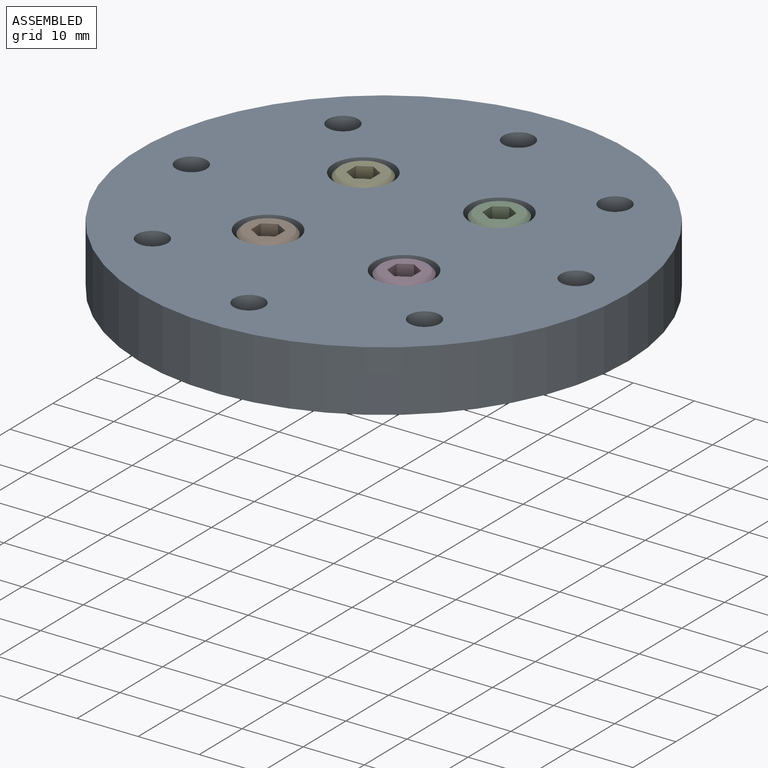
[diagram: assembled view]
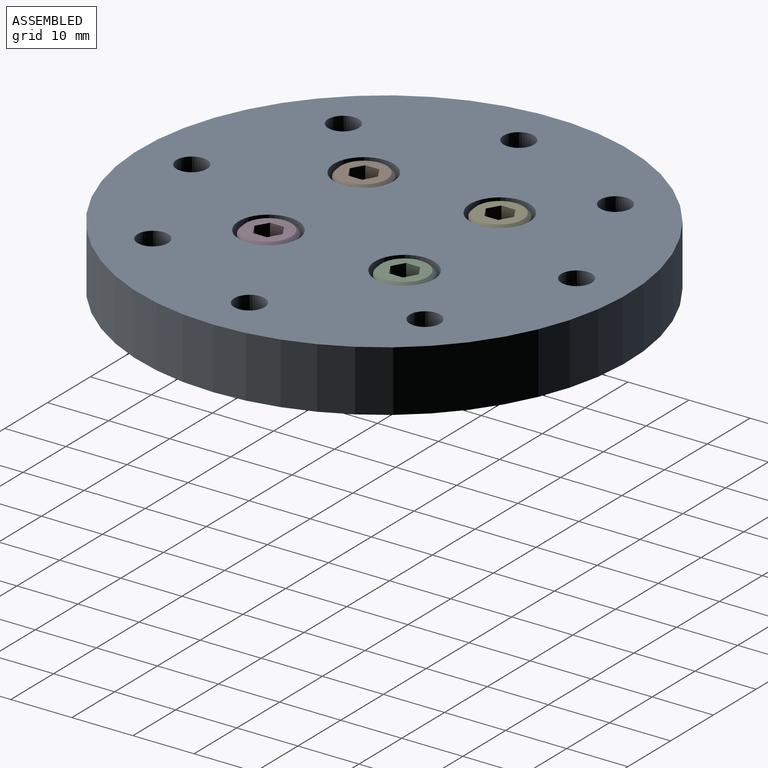
[diagram: assembled view, second angle]
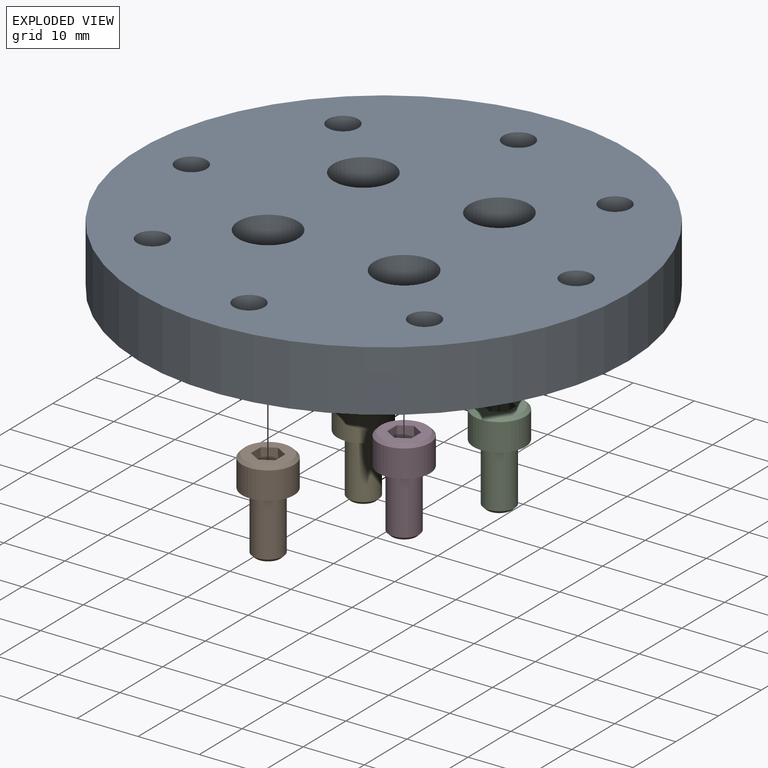
[diagram: exploded view]
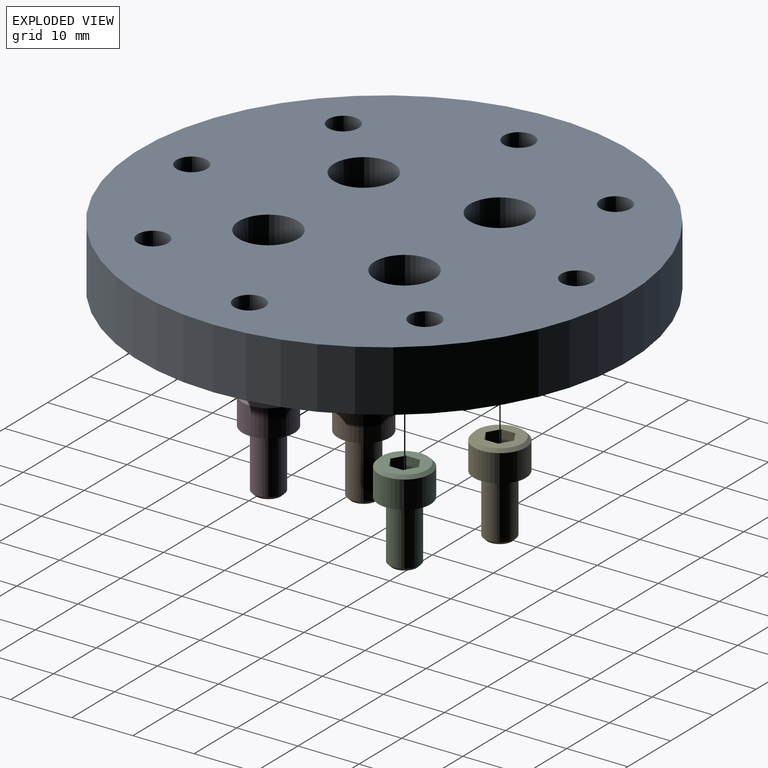
[diagram: exploded view, second angle]
ASSEMBLY  parts=5 mates=4
PART A: 23 faces, bbox 80x80x10 mm
  f0: cylinder r=40mm len=80mm, axis (0,0,-1), area 2513.3mm2, adj f1,f2
  f1: plane 80x80mm, normal (0,0,1), area 4570.8mm2, adj f0,f3,f4,f5,f6,f7,f8,f9
  f2: plane 80x80mm, normal (0,0,-1), area 4774.4mm2, adj f0,f3,f4,f5,f6,f7,f8,f9
  f3: cylinder r=2.5mm len=10mm, axis (0,0,-1), area 157.1mm2, adj f1,f2
  f4: cylinder r=2.5mm len=10mm, axis (0,0,-1), area 157.1mm2, adj f1,f2
  f5: cylinder r=2.5mm len=10mm, axis (0,0,-1), area 157.1mm2, adj f1,f2
  f6: cylinder r=2.5mm len=10mm, axis (0,0,-1), area 157.1mm2, adj f1,f2
  f7: cylinder r=2.5mm len=10mm, axis (0,0,-1), area 157.1mm2, adj f1,f2
  f8: cylinder r=2.5mm len=10mm, axis (0,0,-1), area 157.1mm2, adj f1,f2
  f9: cylinder r=2.5mm len=10mm, axis (0,0,-1), area 157.1mm2, adj f1,f2
  f10: cylinder r=2.5mm len=10mm, axis (0,0,-1), area 157.1mm2, adj f1,f2
  f11: cylinder r=2.75mm len=5.5mm, axis (0,0,1), area 86.4mm2, adj f2,f12
  f12: plane 9.75x9.75mm, normal (0,0,1), area 50.9mm2, adj f11,f13
  f13: cylinder r=4.88mm len=9.75mm, axis (0,0,1), area 153.2mm2, adj f1,f12
  f14: cylinder r=2.75mm len=5.5mm, axis (0,0,1), area 86.4mm2, adj f2,f15
  f15: plane 9.75x9.75mm, normal (0,0,1), area 50.9mm2, adj f14,f16
  f16: cylinder r=4.88mm len=9.75mm, axis (0,0,1), area 153.2mm2, adj f1,f15
  f17: cylinder r=2.75mm len=5.5mm, axis (0,0,1), area 86.4mm2, adj f2,f18
  f18: plane 9.75x9.75mm, normal (0,0,1), area 50.9mm2, adj f17,f19
  f19: cylinder r=4.88mm len=9.75mm, axis (0,0,1), area 153.2mm2, adj f1,f18
  f20: cylinder r=2.75mm len=5.5mm, axis (0,0,1), area 86.4mm2, adj f2,f21
  f21: plane 9.75x9.75mm, normal (0,0,1), area 50.9mm2, adj f20,f22
  f22: cylinder r=4.88mm len=9.75mm, axis (0,0,1), area 153.2mm2, adj f1,f21
PART B: 20 faces, bbox 15x8.5x8.5 mm
  f0: cone r=3.75mm half-angle=45deg, axis (1,0,0), area 17.8mm2, adj f1,f13
  f1: plane 7.5x7.5mm, normal (-1,0,0), area 30.3mm2, adj f0,f2,f3,f4,f5,f6,f7
  f2: plane 2.5x2mm, normal (0,-0.87,0.5), area 5.8mm2, adj f1,f3,f4,f16,f17
  f3: plane 2.5x2mm, normal (0,-0.87,-0.5), area 5.8mm2, adj f1,f2,f7,f17,f18
  f4: plane 2.5x2.31mm, normal (0,0,1), area 5.8mm2, adj f1,f2,f5,f14,f16
  f5: plane 2.5x2mm, normal (0,0.87,0.5), area 5.8mm2, adj f1,f4,f6,f14,f15
  f6: plane 2.5x2mm, normal (0,0.87,-0.5), area 5.8mm2, adj f1,f5,f7,f15,f19
  f7: plane 2.5x2.31mm, normal (0,0,-1), area 5.8mm2, adj f1,f3,f6,f18,f19
  f8: cone r=2mm half-angle=75deg, axis (-1,0,0), area 13mm2, adj f14,f15,f16,f17,f18,f19
  f9: plane 4.02x4.02mm, normal (1,0,0), area 12.7mm2, adj f10
  f10: cone r=2.5mm half-angle=45deg, axis (-1,0,0), area 9.8mm2, adj f9,f11
  f11: cylinder r=2.5mm len=9.51mm, axis (-1,0,0), area 149.4mm2, adj f10,f12
  f12: plane 8.5x8.5mm, normal (1,0,0), area 37.1mm2, adj f11,f13
  f13: cylinder r=4.25mm len=8.5mm, axis (-1,0,0), area 120.2mm2, adj f0,f12
  f14: plane 1.73x1mm, normal (-1,0,0), area 0.2mm2, adj f4,f5,f8
  f15: plane 2x0.58mm, normal (-1,0,0), area 0.2mm2, adj f5,f6,f8
  f16: plane 1.73x1mm, normal (-1,0,0), area 0.2mm2, adj f2,f4,f8
  f17: plane 2x0.58mm, normal (-1,0,0), area 0.2mm2, adj f2,f3,f8
  f18: plane 1.73x1mm, normal (-1,0,0), area 0.2mm2, adj f3,f7,f8
  f19: plane 1.73x1mm, normal (-1,0,0), area 0.2mm2, adj f6,f7,f8
PART C: same geometry as B
PART D: same geometry as B
PART E: same geometry as B
PLACE A t=(4.5,5.27,-0.99)mm fixed
PLACE B rot(axis=(0,1,0),90deg) t=(-6.64,-5.86,4.01)mm
PLACE C rot(axis=(0,1,0),90deg) t=(15.64,16.41,4.01)mm
PLACE D rot(axis=(0,1,0),90deg) t=(15.64,-5.86,4.01)mm
PLACE E rot(axis=(0,1,0),90deg) t=(-6.64,16.41,4.01)mm
MATE fastened A.f17 <-> D.f0  axis (0,0,1) through (15.64,-5.86,4.01)mm
MATE fastened A.f11 <-> E.f0  axis (0,0,1) through (-6.64,16.41,4.01)mm
MATE fastened A.f20 <-> B.f0  axis (0,0,1) through (-6.64,-5.86,4.01)mm
MATE fastened A.f14 <-> C.f0  axis (0,0,1) through (15.64,16.41,4.01)mm
